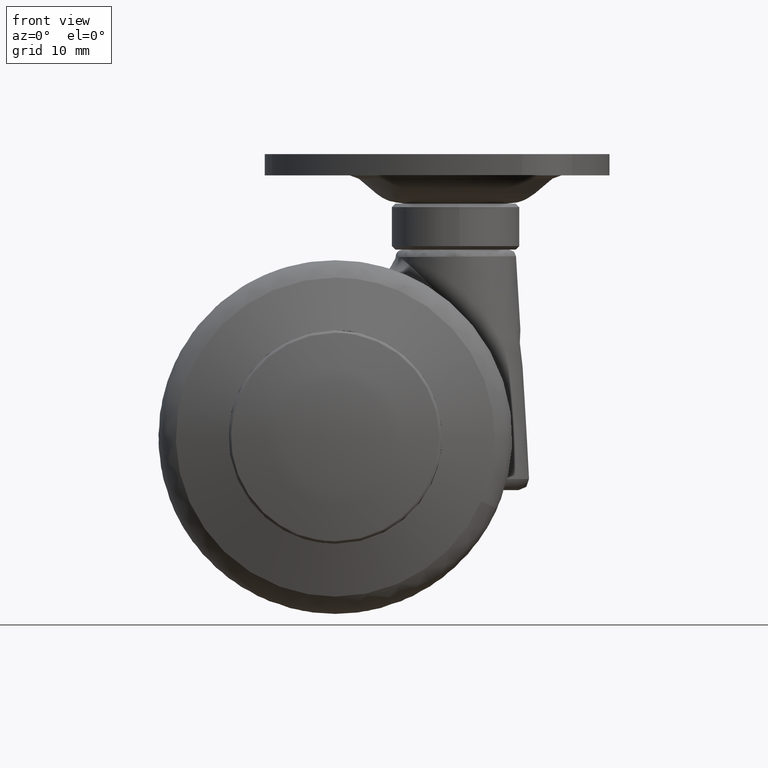
[diagram: clean part render]
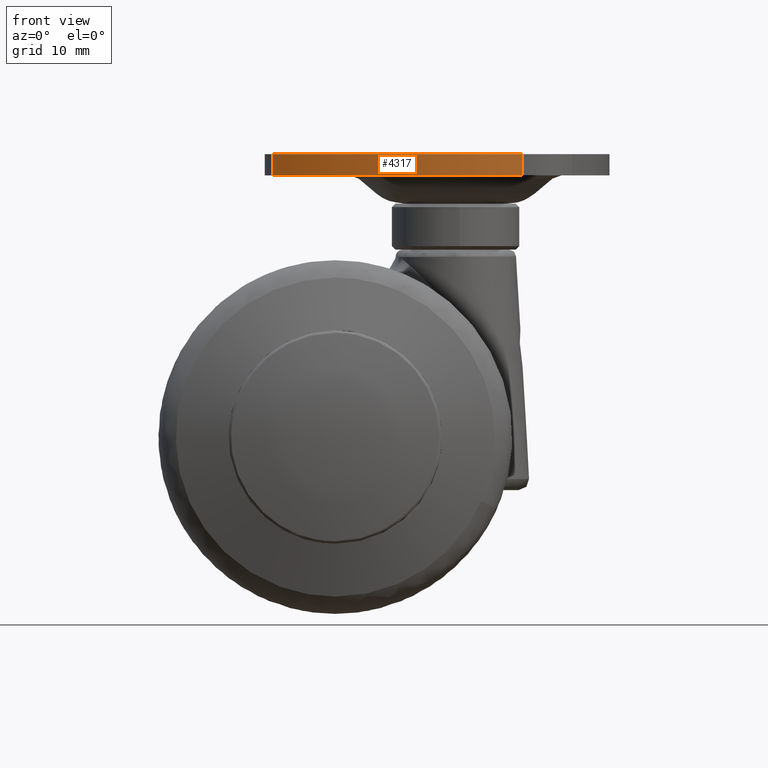
[diagram: same view with one face highlighted and labeled with its STEP entity id]
A machine part, front view. The second image highlights one B-rep face of the part: STEP entity #4317.
In plain terms, the highlighted face is a freeform B-spline surface patch.
Its self-contained STEP definition (entity closure, byte-faithful):
#4016=CARTESIAN_POINT('',(-8.887220776119202,-4.070158069546245,37.0));
#4017=VERTEX_POINT('',#4016);
#4031=CARTESIAN_POINT('',(-8.887220776119202,-4.070158069546245,40.0));
#4032=VERTEX_POINT('',#4031);
#4033=CARTESIAN_POINT('',(-8.887220776119202,-4.070158069546245,40.0));
#4034=CARTESIAN_POINT('',(-8.887220776119202,-4.070158069546245,37.0));
#4035=QUASI_UNIFORM_CURVE('',1,(#4033,#4034),.UNSPECIFIED.,.F.,.U.);
#4036=EDGE_CURVE('',#4032,#4017,#4035,.T.);
#4234=CARTESIAN_POINT('',(26.418748310005348,-24.454070550634601,37.0));
#4235=VERTEX_POINT('',#4234);
#4250=CARTESIAN_POINT('',(26.418748310005348,-24.454070550634601,40.0));
#4251=VERTEX_POINT('',#4250);
#4265=CARTESIAN_POINT('',(26.418748310005348,-24.454070550634601,40.0));
#4266=CARTESIAN_POINT('',(26.418748310005348,-24.454070550634601,37.0));
#4267=QUASI_UNIFORM_CURVE('',1,(#4265,#4266),.UNSPECIFIED.,.F.,.U.);
#4268=EDGE_CURVE('',#4251,#4235,#4267,.T.);
#4273=CARTESIAN_POINT('',(-9.774193588910507,-2.491652450088459,40.075000000000010));
#4274=CARTESIAN_POINT('',(-9.774193588910507,-2.491652450088459,36.923124999999992));
#4275=CARTESIAN_POINT('',(2.432905049268928,-25.370887962710118,40.075000000000010));
#4276=CARTESIAN_POINT('',(2.432905049268928,-25.370887962710118,36.923124999999992));
#4277=CARTESIAN_POINT('',(28.347865540875851,-24.428817093453151,40.075000000000010));
#4278=CARTESIAN_POINT('',(28.347865540875851,-24.428817093453151,36.923124999999992));
#4286=(BOUNDED_SURFACE()B_SPLINE_SURFACE(1,2,((#4273,#4275,#4277),(#4274,#4276,#4278)),.UNSPECIFIED.,.F.,.F.,.U.)B_SPLINE_SURFACE_WITH_KNOTS((2,2),(3,3),(0.0,3.151875000000024),(0.0,47.599734035962037),.UNSPECIFIED.)GEOMETRIC_REPRESENTATION_ITEM()RATIONAL_B_SPLINE_SURFACE(((1.0,0.848048096156426,1.0),(1.0,0.848048096156426,1.0)))REPRESENTATION_ITEM('')SURFACE());
#4287=CARTESIAN_POINT('',(-8.887220776119202,-4.070158069546259,37.0));
#4288=CARTESIAN_POINT('',(3.018654533397902,-24.216398656747568,37.0));
#4289=CARTESIAN_POINT('',(26.418748310005341,-24.454070550634640,37.0));
#4297=(BOUNDED_CURVE()B_SPLINE_CURVE(2,(#4287,#4288,#4289),.UNSPECIFIED.,.F.,.U.)CURVE()GEOMETRIC_REPRESENTATION_ITEM()QUASI_UNIFORM_CURVE()RATIONAL_B_SPLINE_CURVE((1.0,0.871058895698466,1.0))REPRESENTATION_ITEM(''));
#4298=EDGE_CURVE('',#4017,#4235,#4297,.T.);
#4299=ORIENTED_EDGE('',*,*,#4298,.T.);
#4300=ORIENTED_EDGE('',*,*,#4268,.F.);
#4301=CARTESIAN_POINT('',(-8.887220776119202,-4.070158069546259,40.0));
#4302=CARTESIAN_POINT('',(3.018654533397902,-24.216398656747568,39.999999999999993));
#4303=CARTESIAN_POINT('',(26.418748310005341,-24.454070550634640,40.0));
#4311=(BOUNDED_CURVE()B_SPLINE_CURVE(2,(#4301,#4302,#4303),.UNSPECIFIED.,.F.,.U.)CURVE()GEOMETRIC_REPRESENTATION_ITEM()QUASI_UNIFORM_CURVE()RATIONAL_B_SPLINE_CURVE((1.0,0.871058895698466,1.0))REPRESENTATION_ITEM(''));
#4312=EDGE_CURVE('',#4032,#4251,#4311,.T.);
#4313=ORIENTED_EDGE('',*,*,#4312,.F.);
#4314=ORIENTED_EDGE('',*,*,#4036,.T.);
#4315=EDGE_LOOP('',(#4299,#4300,#4313,#4314));
#4316=FACE_OUTER_BOUND('',#4315,.T.);
#4317=ADVANCED_FACE('',(#4316),#4286,.T.);